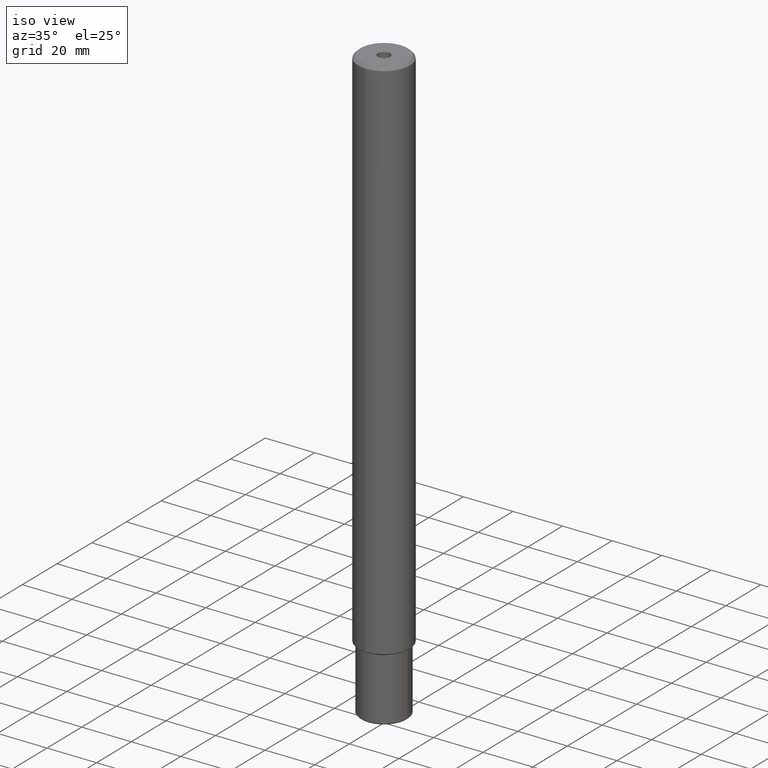
[diagram: clean part render]
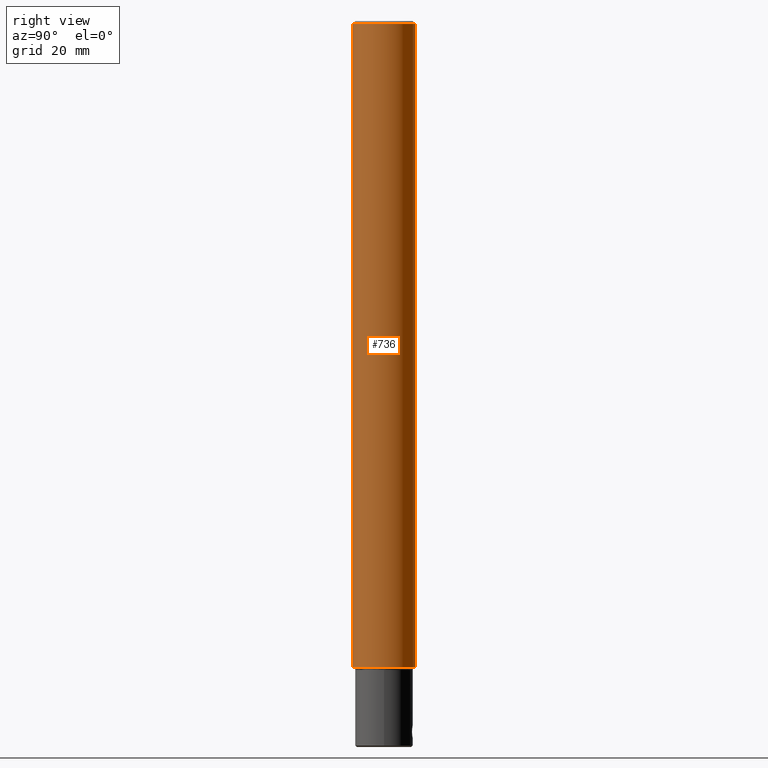
[diagram: tour spotlight — one face highlighted and labeled with its STEP entity id]
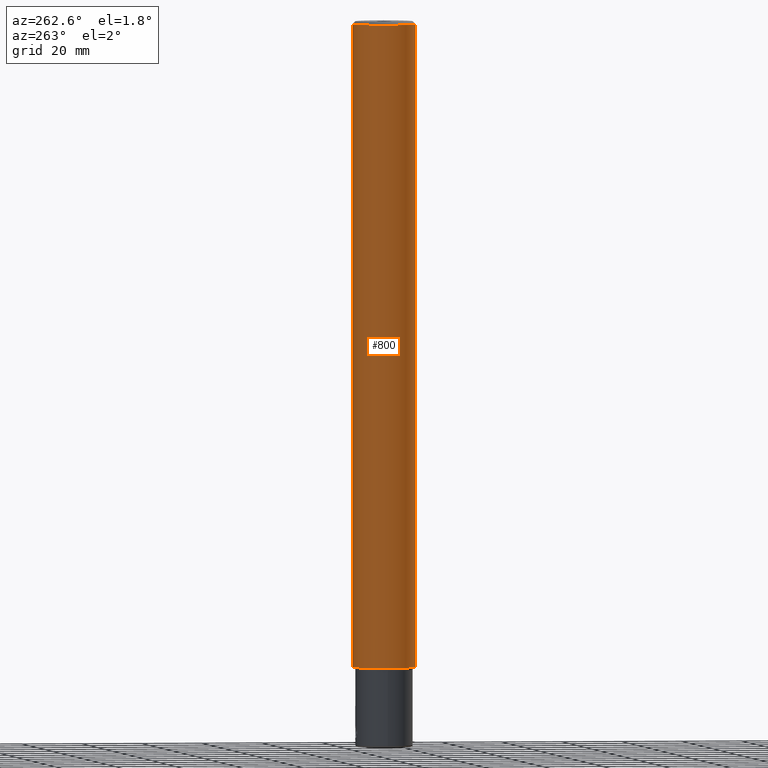
[diagram: tour spotlight — one face highlighted and labeled with its STEP entity id]
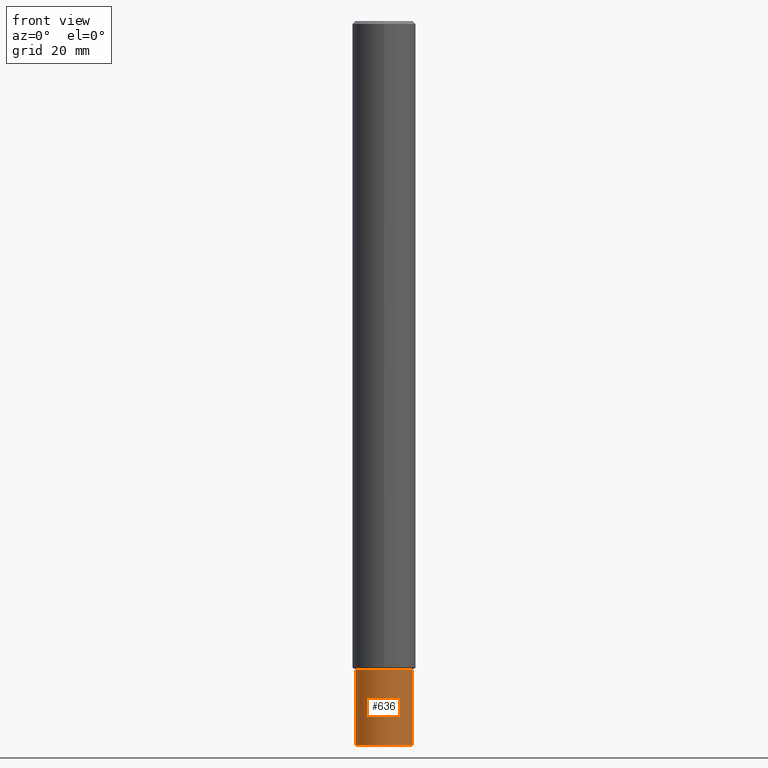
[diagram: tour spotlight — one face highlighted and labeled with its STEP entity id]
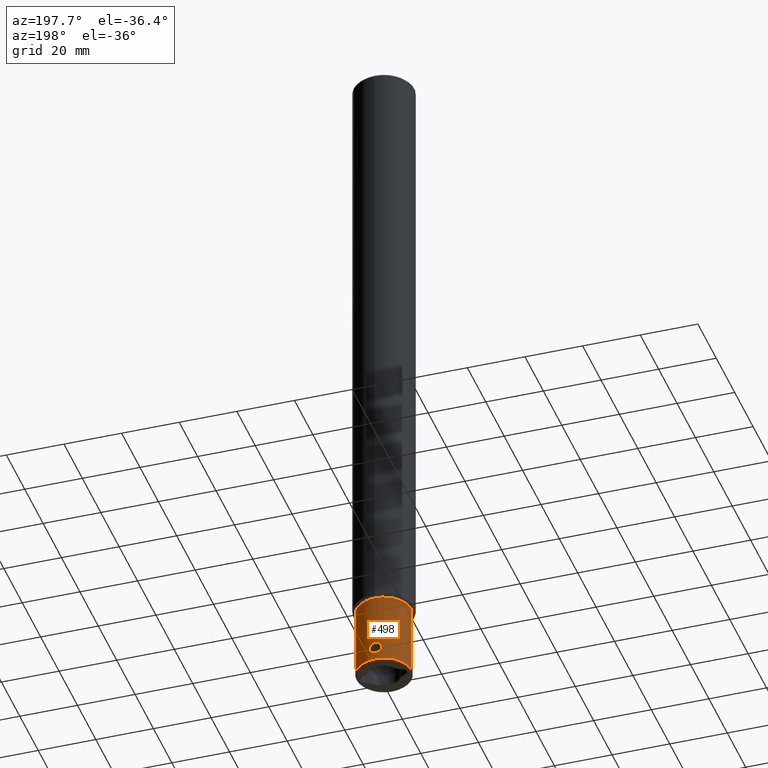
[diagram: tour spotlight — one face highlighted and labeled with its STEP entity id]
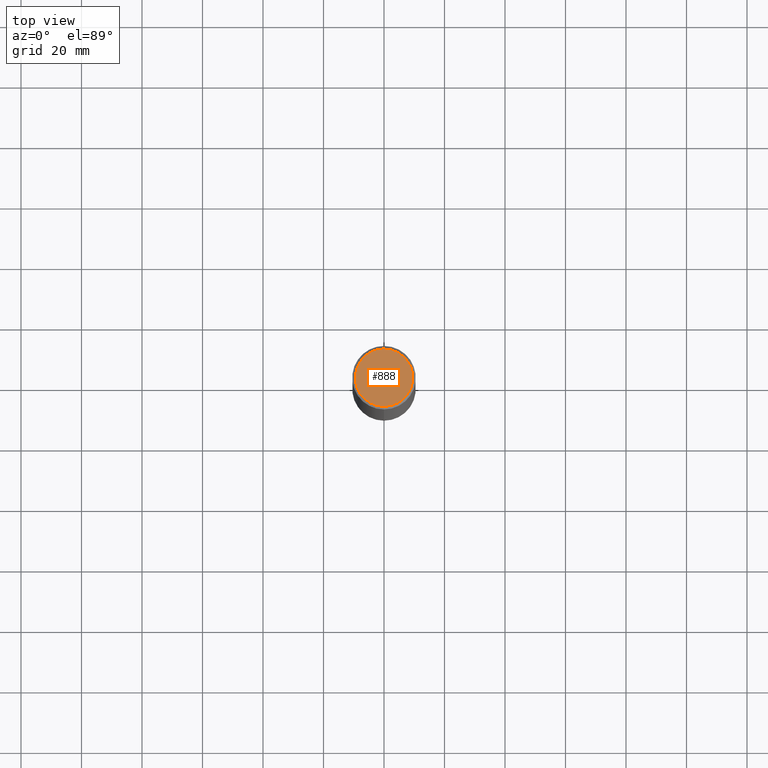
[diagram: tour spotlight — one face highlighted and labeled with its STEP entity id]
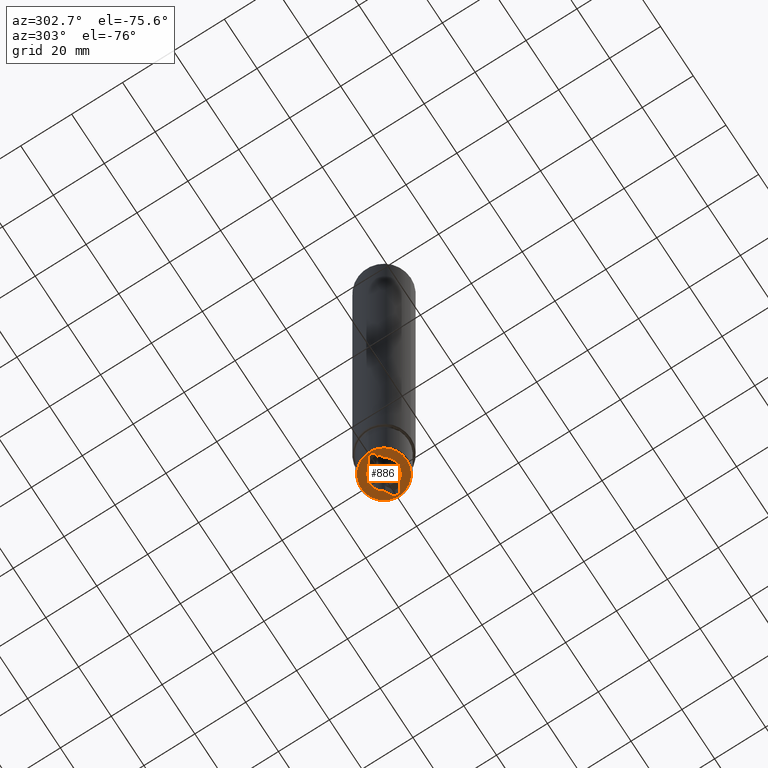
[diagram: tour spotlight — one face highlighted and labeled with its STEP entity id]
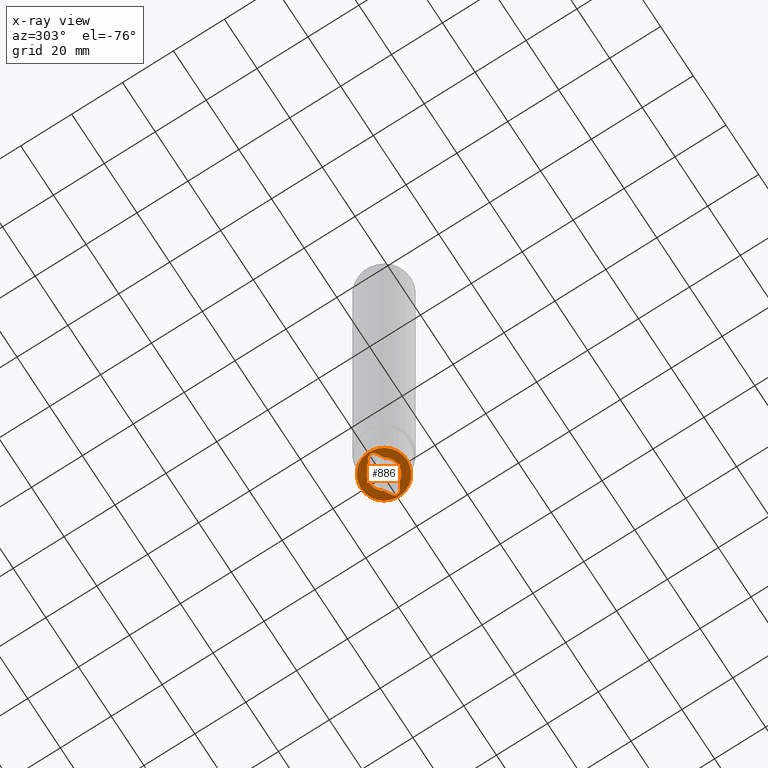
[diagram: x-ray of the same camera — body ghosted, this tour face saturated]
A machine part: a face-by-face anatomy tour. The part has 72 B-rep faces; the first image is the clean iso view, then the 6 largest visible faces are spotlighted one at a time (largest first), each with its STEP entity span.

Face 1 — right view, entity #736. In plain terms, the highlighted cylindrical surface (edge-blend (fillet) strip) has radius 10.5 mm, axis along (0, 0, -1).
Definition (entity closure, byte-faithful):
#434=VERTEX_POINT('NONE',#1158);
#574=VERTEX_POINT('NONE',#1319);
#578=EDGE_CURVE('NONE',#574,#652,#1323,.F.);
#580=EDGE_CURVE('NONE',#434,#1054,#1325,.T.);
#652=VERTEX_POINT('NONE',#1402);
#662=EDGE_CURVE('NONE',#574,#434,#1413,.T.);
#676=EDGE_CURVE('NONE',#652,#1054,#1428,.T.);
#736=ADVANCED_FACE('NONE',(#1491),#1492,.T.);
#1054=VERTEX_POINT('NONE',#1848);
#1158=CARTESIAN_POINT('',(1.93373367662066E-014,10.5,26.3));
#1319=CARTESIAN_POINT('',(-1.60843288344592E-014,10.5,239.0));
#1323=CIRCLE('',#2228,10.5);
#1325=CIRCLE('',#2231,10.5);
#1402=CARTESIAN_POINT('',(-6.22328253596513E-014,-10.5,239.0));
#1413=LINE('',#2448,#2449);
#1428=LINE('',#2468,#2469);
#1491=FACE_OUTER_BOUND('',#2557,.T.);
#1492=CYLINDRICAL_SURFACE('',#2558,10.5);
#1848=CARTESIAN_POINT('',(-2.68111597589856E-014,-10.5,26.3));
#2228=AXIS2_PLACEMENT_3D('',#3627,#3628,#3629);
#2231=AXIS2_PLACEMENT_3D('',#3630,#3631,#3632);
#2448=CARTESIAN_POINT('',(2.37171665983528E-014,10.5,6.69410264469195E-016));
#2449=VECTOR('',#3714,1000.0);
#2468=CARTESIAN_POINT('',(-2.24313299268393E-014,-10.5,-6.69410264469195E-016));
#2469=VECTOR('',#3727,1000.0);
#2557=EDGE_LOOP('',(#3784,#3785,#3786,#3787));
#2558=AXIS2_PLACEMENT_3D('',#3788,#3789,#3790);
#3627=CARTESIAN_POINT('',(-3.9801495432812E-014,-1.52370526864892E-014,239.0));
#3628=DIRECTION('',(-1.66533453693774E-016,-6.37533585208753E-017,1.0));
#3629=DIRECTION('',(2.2587777712717E-015,1.0,6.37533585208757E-017));
#3630=CARTESIAN_POINT('',(-4.37982983214626E-015,-1.67671332909902E-015,26.3));
#3631=DIRECTION('',(1.66533453693774E-016,6.37533585208753E-017,-1.0));
#3632=DIRECTION('',(2.2587777712717E-015,1.0,6.37533585208757E-017));
#3714=DIRECTION('',(1.66533453693774E-016,6.37533585208753E-017,-1.0));
#3727=DIRECTION('',(1.66533453693774E-016,6.37533585208753E-017,-1.0));
#3784=ORIENTED_EDGE('',*,*,#578,.T.);
#3785=ORIENTED_EDGE('',*,*,#676,.T.);
#3786=ORIENTED_EDGE('',*,*,#580,.F.);
#3787=ORIENTED_EDGE('',*,*,#662,.F.);
#3788=CARTESIAN_POINT('',(0.0,0.0,0.0));
#3789=DIRECTION('',(1.66533453693774E-016,6.37533585208753E-017,-1.0));
#3790=DIRECTION('',(2.2587777712717E-015,1.0,6.37533585208757E-017));

Face 2 — auxiliary view, entity #800. In plain terms, the highlighted cylindrical surface (edge-blend (fillet) strip) has radius 10.5 mm, axis along (0, 0, -1).
Definition (entity closure, byte-faithful):
#434=VERTEX_POINT('NONE',#1158);
#574=VERTEX_POINT('NONE',#1319);
#652=VERTEX_POINT('NONE',#1402);
#662=EDGE_CURVE('NONE',#574,#434,#1413,.T.);
#676=EDGE_CURVE('NONE',#652,#1054,#1428,.T.);
#800=ADVANCED_FACE('NONE',(#1563),#1564,.T.);
#1032=EDGE_CURVE('NONE',#652,#574,#1823,.T.);
#1054=VERTEX_POINT('NONE',#1848);
#1072=EDGE_CURVE('NONE',#1054,#434,#1868,.F.);
#1158=CARTESIAN_POINT('',(1.93373367662066E-014,10.5,26.3));
#1319=CARTESIAN_POINT('',(-1.60843288344592E-014,10.5,239.0));
#1402=CARTESIAN_POINT('',(-6.22328253596513E-014,-10.5,239.0));
#1413=LINE('',#2448,#2449);
#1428=LINE('',#2468,#2469);
#1563=FACE_OUTER_BOUND('',#2646,.T.);
#1564=CYLINDRICAL_SURFACE('',#2647,10.5);
#1823=CIRCLE('',#3204,10.5);
#1848=CARTESIAN_POINT('',(-2.68111597589856E-014,-10.5,26.3));
#1868=CIRCLE('',#3344,10.5);
#2448=CARTESIAN_POINT('',(2.37171665983528E-014,10.5,6.69410264469195E-016));
#2449=VECTOR('',#3714,1000.0);
#2468=CARTESIAN_POINT('',(-2.24313299268393E-014,-10.5,-6.69410264469195E-016));
#2469=VECTOR('',#3727,1000.0);
#2646=EDGE_LOOP('',(#3883,#3884,#3885,#3886));
#2647=AXIS2_PLACEMENT_3D('',#3887,#3888,#3889);
#3204=AXIS2_PLACEMENT_3D('',#4217,#4218,#4219);
#3344=AXIS2_PLACEMENT_3D('',#4268,#4269,#4270);
#3714=DIRECTION('',(1.66533453693774E-016,6.37533585208753E-017,-1.0));
#3727=DIRECTION('',(1.66533453693774E-016,6.37533585208753E-017,-1.0));
#3883=ORIENTED_EDGE('',*,*,#676,.F.);
#3884=ORIENTED_EDGE('',*,*,#1032,.T.);
#3885=ORIENTED_EDGE('',*,*,#662,.T.);
#3886=ORIENTED_EDGE('',*,*,#1072,.F.);
#3887=CARTESIAN_POINT('',(0.0,0.0,0.0));
#3888=DIRECTION('',(1.66533453693774E-016,6.37533585208753E-017,-1.0));
#3889=DIRECTION('',(2.2587777712717E-015,1.0,6.37533585208757E-017));
#4217=CARTESIAN_POINT('',(-3.9801495432812E-014,-1.52370526864892E-014,239.0));
#4218=DIRECTION('',(1.66533453693774E-016,6.37533585208753E-017,-1.0));
#4219=DIRECTION('',(2.2587777712717E-015,1.0,6.37533585208757E-017));
#4268=CARTESIAN_POINT('',(-4.37982983214626E-015,-1.67671332909902E-015,26.3));
#4269=DIRECTION('',(-1.66533453693774E-016,-6.37533585208753E-017,1.0));
#4270=DIRECTION('',(2.2587777712717E-015,1.0,6.37533585208757E-017));

Face 3 — front view, entity #636. In plain terms, the highlighted cylindrical surface (edge-blend (fillet) strip) has radius 9.5 mm, axis along (0, -0, -1).
Definition (entity closure, byte-faithful):
#392=EDGE_CURVE('NONE',#708,#410,#1115,.T.);
#410=VERTEX_POINT('NONE',#1134);
#504=EDGE_CURVE('NONE',#872,#410,#1242,.T.);
#560=VERTEX_POINT('NONE',#1303);
#636=ADVANCED_FACE('NONE',(#1384),#1385,.T.);
#708=VERTEX_POINT('NONE',#1462);
#730=EDGE_CURVE('NONE',#778,#746,#1485,.F.);
#746=VERTEX_POINT('NONE',#1503);
#778=VERTEX_POINT('NONE',#1538);
#814=EDGE_CURVE('NONE',#746,#708,#1579,.F.);
#872=VERTEX_POINT('NONE',#1647);
#880=EDGE_CURVE('NONE',#778,#560,#1655,.T.);
#972=EDGE_CURVE('NONE',#560,#872,#1757,.T.);
#1115=LINE('',#1910,#1911);
#1134=CARTESIAN_POINT('',(-9.49999999999999,-1.08031764267214E-015,0.499999999999987));
#1242=CIRCLE('',#2124,9.49999999999999);
#1303=CARTESIAN_POINT('',(9.49999999999999,2.41022713249717E-015,0.49999999999999));
#1384=FACE_OUTER_BOUND('',#2305,.T.);
#1385=CYLINDRICAL_SURFACE('',#2306,9.49999999999999);
#1462=CARTESIAN_POINT('',(-9.5,3.08301869967222E-015,25.5));
#1485=CIRCLE('',#2548,9.49999999999999);
#1503=CARTESIAN_POINT('',(-2.45110007012955E-014,-9.5,25.5));
#1538=CARTESIAN_POINT('',(9.49999999999999,6.57356347484152E-015,25.5));
#1579=CIRCLE('',#2665,9.49999999999999);
#1647=CARTESIAN_POINT('',(-8.30583934591185E-017,-9.49999999999999,0.49999999999999));
#1655=LINE('',#2792,#2793);
#1757=CIRCLE('',#2990,9.49999999999999);
#1910=CARTESIAN_POINT('',(-9.49999999999999,-1.78977480884107E-015,-3.76014803892497));
#1911=VECTOR('',#3381,1000.0);
#2124=AXIS2_PLACEMENT_3D('',#3532,#3533,#3534);
#2305=EDGE_LOOP('',(#3683,#3684,#3685,#3686,#3687,#3688));
#2306=AXIS2_PLACEMENT_3D('',#3689,#3690,#3691);
#2548=AXIS2_PLACEMENT_3D('',#3776,#3777,#3778);
#2665=AXIS2_PLACEMENT_3D('',#3904,#3905,#3906);
#2792=CARTESIAN_POINT('',(9.49999999999999,1.70076996632823E-015,-3.76014803892496));
#2793=VECTOR('',#4016,1000.0);
#2990=AXIS2_PLACEMENT_3D('',#4133,#4134,#4135);
#3381=DIRECTION('',(4.40728183115358E-017,-1.66533453693774E-016,-1.0));
#3532=CARTESIAN_POINT('',(5.00168442699932E-016,8.32667268468846E-017,0.499999999999986));
#3533=DIRECTION('',(2.95816003271834E-017,-1.66533453693774E-016,-1.0));
#3534=DIRECTION('',(-1.0,-1.22482565212528E-016,-2.95816003271834E-017));
#3683=ORIENTED_EDGE('',*,*,#880,.F.);
#3684=ORIENTED_EDGE('',*,*,#730,.T.);
#3685=ORIENTED_EDGE('',*,*,#814,.T.);
#3686=ORIENTED_EDGE('',*,*,#392,.T.);
#3687=ORIENTED_EDGE('',*,*,#504,.F.);
#3688=ORIENTED_EDGE('',*,*,#972,.F.);
#3689=CARTESIAN_POINT('',(6.26190439322044E-016,-6.26190439322045E-016,-3.76014803892497));
#3690=DIRECTION('',(2.95816003271834E-017,-1.66533453693774E-016,-1.0));
#3691=DIRECTION('',(-1.0,-1.22482565212528E-016,-2.95816003271834E-017));
#3776=CARTESIAN_POINT('',(-4.24660306919124E-015,-9.57567358739187E-016,25.5));
#3777=DIRECTION('',(-2.95816003271834E-017,1.66533453693774E-016,1.0));
#3778=DIRECTION('',(-1.0,-1.22482565212528E-016,-2.95816003271834E-017));
#3904=CARTESIAN_POINT('',(-4.24660306919124E-015,-9.57567358739187E-016,25.5));
#3905=DIRECTION('',(-2.95816003271834E-017,1.66533453693774E-016,1.0));
#3906=DIRECTION('',(-1.0,-1.22482565212528E-016,-2.95816003271834E-017));
#4016=DIRECTION('',(4.40728183115358E-017,-1.66533453693774E-016,-1.0));
#4133=CARTESIAN_POINT('',(5.00168442699932E-016,8.32667268468846E-017,0.499999999999986));
#4134=DIRECTION('',(2.95816003271834E-017,-1.66533453693774E-016,-1.0));
#4135=DIRECTION('',(-1.0,-1.22482565212528E-016,-2.95816003271834E-017));

Face 4 — auxiliary view, entity #498. In plain terms, the highlighted cylindrical surface (edge-blend (fillet) strip) has radius 9.5 mm, axis along (0, -0, -1).
Definition (entity closure, byte-faithful):
#392=EDGE_CURVE('NONE',#708,#410,#1115,.T.);
#410=VERTEX_POINT('NONE',#1134);
#498=ADVANCED_FACE('NONE',(#1234,#1235),#1236,.T.);
#546=VERTEX_POINT('NONE',#1288);
#548=EDGE_CURVE('NONE',#708,#566,#1290,.F.);
#560=VERTEX_POINT('NONE',#1303);
#566=VERTEX_POINT('NONE',#1310);
#592=EDGE_CURVE('NONE',#566,#778,#1338,.F.);
#654=EDGE_CURVE('NONE',#658,#546,#1404,.F.);
#658=VERTEX_POINT('NONE',#1409);
#708=VERTEX_POINT('NONE',#1462);
#778=VERTEX_POINT('NONE',#1538);
#828=EDGE_CURVE('NONE',#1004,#560,#1593,.F.);
#880=EDGE_CURVE('NONE',#778,#560,#1655,.T.);
#1004=VERTEX_POINT('NONE',#1794);
#1010=EDGE_CURVE('NONE',#546,#658,#1800,.F.);
#1016=EDGE_CURVE('NONE',#410,#1004,#1806,.F.);
#1115=LINE('',#1910,#1911);
#1134=CARTESIAN_POINT('',(-9.49999999999999,-1.08031764267214E-015,0.499999999999987));
#1234=FACE_OUTER_BOUND('',#2111,.T.);
#1235=FACE_BOUND('',#2112,.T.);
#1236=CYLINDRICAL_SURFACE('',#2113,9.49999999999999);
#1288=CARTESIAN_POINT('',(-2.61146654234438E-015,9.49999999999999,7.15));
#1290=CIRCLE('',#2187,9.49999999999999);
#1303=CARTESIAN_POINT('',(9.49999999999999,2.41022713249717E-015,0.49999999999999));
#1310=CARTESIAN_POINT('',(1.72117857578899E-014,9.5,25.5));
#1338=CIRCLE('',#2247,9.49999999999999);
#1404=B_SPLINE_CURVE_WITH_KNOTS('',3,(#2386,#2387,#2388,#2389,#2390,#2391,#2392,#2393,#2394,#2395,#2396,#2397,#2398,#2399,#2400,#2401,#2402,#2403,#2404,#2405,#2406,#2407,#2408,#2409,#2410,#2411,#2412,#2413,#2414,#2415,#2416,#2417,#2418,#2419,#2420,#2421,#2422,#2423,#2424,#2425,#2426,#2427,#2428,#2429,#2430,#2431,#2432,#2433,#2434,#2435,#2436),.UNSPECIFIED.,.F.,.F.,(4,2,2,2,2,2,2,2,2,2,2,2,3,2,2,2,2,2,2,2,2,2,2,2,4),(-4.76316064169787,-4.36624174777563,-3.9693228538534,-3.57240395993116,-3.17548506600892,-2.77856617208668,-2.38164727816444,-1.9847283842422,-1.58780949031996,-1.19085711773997,-0.793904745159981,-0.396952372579991,0.0,0.39695237257999,0.79390474515998,1.19085711773997,1.58780949031996,1.9847283842422,2.38164727816444,2.77856617208668,3.17548506600891,3.57240395993115,3.96932285385339,4.36624174777563,4.76316064169787),.UNSPECIFIED.);
#1409=CARTESIAN_POINT('',(-1.64327351938954E-015,9.49999999999999,2.95));
#1462=CARTESIAN_POINT('',(-9.5,3.08301869967222E-015,25.5));
#1538=CARTESIAN_POINT('',(9.49999999999999,6.57356347484152E-015,25.5));
#1593=CIRCLE('',#2689,9.49999999999999);
#1655=LINE('',#2792,#2793);
#1794=CARTESIAN_POINT('',(-1.24685109636591E-015,9.49999999999999,0.499999999999987));
#1800=B_SPLINE_CURVE_WITH_KNOTS('',3,(#3108,#3109,#3110,#3111,#3112,#3113,#3114,#3115,#3116,#3117,#3118,#3119,#3120,#3121,#3122,#3123,#3124,#3125,#3126,#3127,#3128,#3129,#3130,#3131,#3132,#3133,#3134,#3135,#3136,#3137,#3138,#3139,#3140,#3141,#3142,#3143,#3144,#3145,#3146,#3147,#3148,#3149,#3150,#3151,#3152,#3153,#3154,#3155,#3156,#3157),.UNSPECIFIED.,.F.,.F.,(4,2,2,2,2,2,2,2,2,2,2,2,2,2,2,2,2,2,2,2,2,2,2,2,4),(1.58780949031996,1.9847283842422,2.38164727816444,2.77856617208668,3.17548506600891,3.57240395993115,3.96932285385339,4.36624174777563,4.76316064169787,5.16011301427786,5.55706538685785,5.95401775943784,6.35097013201783,6.74792250459782,7.14487487717781,7.5418272497578,7.93877962233779,8.33569851626003,8.73261741018227,9.12953630410451,9.52645519802675,9.92337409194898,10.3202929858712,10.7172118797935,11.1141307737157),.UNSPECIFIED.);
#1806=CIRCLE('',#3167,9.49999999999999);
#1910=CARTESIAN_POINT('',(-9.49999999999999,-1.78977480884107E-015,-3.76014803892497));
#1911=VECTOR('',#3381,1000.0);
#2111=EDGE_LOOP('',(#3519,#3520,#3521,#3522,#3523,#3524));
#2112=EDGE_LOOP('',(#3525,#3526));
#2113=AXIS2_PLACEMENT_3D('',#3527,#3528,#3529);
#2187=AXIS2_PLACEMENT_3D('',#3594,#3595,#3596);
#2247=AXIS2_PLACEMENT_3D('',#3646,#3647,#3648);
#2386=CARTESIAN_POINT('',(-1.48492424049175,9.38322972115678,6.53492424049175));
#2387=CARTESIAN_POINT('',(-1.39194986187023,9.39794319537221,6.62789861911327));
#2388=CARTESIAN_POINT('',(-1.28688934092168,9.41314073160092,6.71521717711817));
#2389=CARTESIAN_POINT('',(-1.05797891274083,9.44160914403957,6.86926167530233));
#2390=CARTESIAN_POINT('',(-0.934132669070055,9.45485229980435,6.93599818100749));
#2391=CARTESIAN_POINT('',(-0.675559563917772,9.47683782324219,7.04329182040496));
#2392=CARTESIAN_POINT('',(-0.540618581817242,9.48557906319787,7.08393422932773));
#2393=CARTESIAN_POINT('',(-0.268993374094961,9.49716384926985,7.13729477193439));
#2394=CARTESIAN_POINT('',(-0.132306297974082,9.49999999999999,7.15));
#2395=CARTESIAN_POINT('',(0.132306297974077,9.49999999999999,7.15));
#2396=CARTESIAN_POINT('',(0.268993374094956,9.49716384926985,7.13729477193439));
#2397=CARTESIAN_POINT('',(0.540618581817237,9.48557906319787,7.08393422932773));
#2398=CARTESIAN_POINT('',(0.675559563917767,9.47683782324219,7.04329182040496));
#2399=CARTESIAN_POINT('',(0.934132669070051,9.45485229980435,6.93599818100749));
#2400=CARTESIAN_POINT('',(1.05797891274083,9.44160914403957,6.86926167530233));
#2401=CARTESIAN_POINT('',(1.28688934092168,9.41314073160092,6.71521717711817));
#2402=CARTESIAN_POINT('',(1.39194986187022,9.39794319537221,6.62789861911327));
#2403=CARTESIAN_POINT('',(1.57790646116224,9.36851500591357,6.44194201982126));
#2404=CARTESIAN_POINT('',(1.66522589677435,9.35324335897208,6.33687785141604));
#2405=CARTESIAN_POINT('',(1.81926688429354,9.32450570398209,6.10796970411624));
#2406=CARTESIAN_POINT('',(1.88599937129834,9.31106917764845,5.98412938375651));
#2407=CARTESIAN_POINT('',(1.99328855236909,9.28869225107125,5.72556785649964));
#2408=CARTESIAN_POINT('',(2.03393053016164,9.27975611893227,5.59063235325535));
#2409=CARTESIAN_POINT('',(2.08729276693529,9.26789921901988,5.31900863845981));
#2410=CARTESIAN_POINT('',(2.1,9.26498785752037,5.18231745752666));
#2411=CARTESIAN_POINT('',(2.1,9.26498785752037,5.05));
#2412=CARTESIAN_POINT('',(2.1,9.26498785752037,4.91768254247333));
#2413=CARTESIAN_POINT('',(2.08729276693529,9.26789921901988,4.78099136154018));
#2414=CARTESIAN_POINT('',(2.03393053016164,9.27975611893228,4.50936764674464));
#2415=CARTESIAN_POINT('',(1.99328855236909,9.28869225107124,4.37443214350036));
#2416=CARTESIAN_POINT('',(1.88599937129834,9.31106917764845,4.11587061624349));
#2417=CARTESIAN_POINT('',(1.81926688429354,9.32450570398209,3.99203029588376));
#2418=CARTESIAN_POINT('',(1.66522589677435,9.35324335897208,3.76312214858395));
#2419=CARTESIAN_POINT('',(1.57790646116224,9.36851500591357,3.65805798017874));
#2420=CARTESIAN_POINT('',(1.39194986187022,9.39794319537221,3.47210138088672));
#2421=CARTESIAN_POINT('',(1.28688934092168,9.41314073160092,3.38478282288182));
#2422=CARTESIAN_POINT('',(1.05797891274083,9.44160914403957,3.23073832469766));
#2423=CARTESIAN_POINT('',(0.934132669070052,9.45485229980435,3.1640018189925));
#2424=CARTESIAN_POINT('',(0.675559563917768,9.47683782324219,3.05670817959503));
#2425=CARTESIAN_POINT('',(0.540618581817238,9.48557906319787,3.01606577067226));
#2426=CARTESIAN_POINT('',(0.268993374094957,9.49716384926985,2.96270522806561));
#2427=CARTESIAN_POINT('',(0.132306297974078,9.49999999999999,2.95));
#2428=CARTESIAN_POINT('',(-0.132306297974082,9.49999999999999,2.95));
#2429=CARTESIAN_POINT('',(-0.26899337409496,9.49716384926985,2.96270522806561));
#2430=CARTESIAN_POINT('',(-0.540618581817241,9.48557906319787,3.01606577067226));
#2431=CARTESIAN_POINT('',(-0.675559563917771,9.4768378232422,3.05670817959503));
#2432=CARTESIAN_POINT('',(-0.934132669070054,9.45485229980435,3.1640018189925));
#2433=CARTESIAN_POINT('',(-1.05797891274083,9.44160914403957,3.23073832469766));
#2434=CARTESIAN_POINT('',(-1.28688934092168,9.41314073160092,3.38478282288182));
#2435=CARTESIAN_POINT('',(-1.39194986187023,9.39794319537221,3.47210138088672));
#2436=CARTESIAN_POINT('',(-1.48492424049175,9.38322972115677,3.56507575950825));
#2689=AXIS2_PLACEMENT_3D('',#3915,#3916,#3917);
#2792=CARTESIAN_POINT('',(9.49999999999999,1.70076996632823E-015,-3.76014803892496));
#2793=VECTOR('',#4016,1000.0);
#3108=CARTESIAN_POINT('',(1.48492424049175,9.38322972115678,3.56507575950825));
#3109=CARTESIAN_POINT('',(1.39194986187022,9.39794319537221,3.47210138088672));
#3110=CARTESIAN_POINT('',(1.28688934092168,9.41314073160092,3.38478282288182));
#3111=CARTESIAN_POINT('',(1.05797891274083,9.44160914403957,3.23073832469766));
#3112=CARTESIAN_POINT('',(0.934132669070052,9.45485229980435,3.1640018189925));
#3113=CARTESIAN_POINT('',(0.675559563917768,9.47683782324219,3.05670817959503));
#3114=CARTESIAN_POINT('',(0.540618581817238,9.48557906319787,3.01606577067226));
#3115=CARTESIAN_POINT('',(0.268993374094957,9.49716384926985,2.96270522806561));
#3116=CARTESIAN_POINT('',(0.132306297974078,9.49999999999999,2.95));
#3117=CARTESIAN_POINT('',(-0.132306297974082,9.49999999999999,2.95));
#3118=CARTESIAN_POINT('',(-0.26899337409496,9.49716384926985,2.96270522806561));
#3119=CARTESIAN_POINT('',(-0.540618581817241,9.48557906319787,3.01606577067226));
#3120=CARTESIAN_POINT('',(-0.675559563917771,9.4768378232422,3.05670817959503));
#3121=CARTESIAN_POINT('',(-0.934132669070054,9.45485229980435,3.1640018189925));
#3122=CARTESIAN_POINT('',(-1.05797891274083,9.44160914403957,3.23073832469766));
#3123=CARTESIAN_POINT('',(-1.28688934092168,9.41314073160092,3.38478282288182));
#3124=CARTESIAN_POINT('',(-1.39194986187023,9.39794319537221,3.47210138088672));
#3125=CARTESIAN_POINT('',(-1.57790646116224,9.36851500591357,3.65805798017874));
#3126=CARTESIAN_POINT('',(-1.66522589677436,9.35324335897208,3.76312214858395));
#3127=CARTESIAN_POINT('',(-1.81926688429354,9.32450570398209,3.99203029588376));
#3128=CARTESIAN_POINT('',(-1.88599937129835,9.31106917764844,4.11587061624349));
#3129=CARTESIAN_POINT('',(-1.9932885523691,9.28869225107124,4.37443214350036));
#3130=CARTESIAN_POINT('',(-2.03393053016164,9.27975611893227,4.50936764674464));
#3131=CARTESIAN_POINT('',(-2.08729276693529,9.26789921901987,4.78099136154018));
#3132=CARTESIAN_POINT('',(-2.1,9.26498785752037,4.91768254247333));
#3133=CARTESIAN_POINT('',(-2.1,9.26498785752037,5.18231745752666));
#3134=CARTESIAN_POINT('',(-2.08729276693529,9.26789921901988,5.31900863845981));
#3135=CARTESIAN_POINT('',(-2.03393053016164,9.27975611893227,5.59063235325535));
#3136=CARTESIAN_POINT('',(-1.9932885523691,9.28869225107124,5.72556785649964));
#3137=CARTESIAN_POINT('',(-1.88599937129835,9.31106917764845,5.98412938375651));
#3138=CARTESIAN_POINT('',(-1.81926688429354,9.32450570398209,6.10796970411624));
#3139=CARTESIAN_POINT('',(-1.66522589677436,9.35324335897208,6.33687785141604));
#3140=CARTESIAN_POINT('',(-1.57790646116224,9.36851500591357,6.44194201982126));
#3141=CARTESIAN_POINT('',(-1.39194986187023,9.39794319537221,6.62789861911327));
#3142=CARTESIAN_POINT('',(-1.28688934092168,9.41314073160092,6.71521717711817));
#3143=CARTESIAN_POINT('',(-1.05797891274083,9.44160914403957,6.86926167530233));
#3144=CARTESIAN_POINT('',(-0.934132669070055,9.45485229980435,6.93599818100749));
#3145=CARTESIAN_POINT('',(-0.675559563917772,9.47683782324219,7.04329182040496));
#3146=CARTESIAN_POINT('',(-0.540618581817242,9.48557906319787,7.08393422932773));
#3147=CARTESIAN_POINT('',(-0.268993374094961,9.49716384926985,7.13729477193439));
#3148=CARTESIAN_POINT('',(-0.132306297974082,9.49999999999999,7.15));
#3149=CARTESIAN_POINT('',(0.132306297974077,9.49999999999999,7.15));
#3150=CARTESIAN_POINT('',(0.268993374094956,9.49716384926985,7.13729477193439));
#3151=CARTESIAN_POINT('',(0.540618581817237,9.48557906319787,7.08393422932773));
#3152=CARTESIAN_POINT('',(0.675559563917767,9.47683782324219,7.04329182040496));
#3153=CARTESIAN_POINT('',(0.934132669070051,9.45485229980435,6.93599818100749));
#3154=CARTESIAN_POINT('',(1.05797891274083,9.44160914403957,6.86926167530233));
#3155=CARTESIAN_POINT('',(1.28688934092168,9.41314073160092,6.71521717711817));
#3156=CARTESIAN_POINT('',(1.39194986187022,9.39794319537221,6.62789861911327));
#3157=CARTESIAN_POINT('',(1.48492424049175,9.38322972115678,6.53492424049175));
#3167=AXIS2_PLACEMENT_3D('',#4200,#4201,#4202);
#3381=DIRECTION('',(4.40728183115358E-017,-1.66533453693774E-016,-1.0));
#3519=ORIENTED_EDGE('',*,*,#548,.T.);
#3520=ORIENTED_EDGE('',*,*,#592,.T.);
#3521=ORIENTED_EDGE('',*,*,#880,.T.);
#3522=ORIENTED_EDGE('',*,*,#828,.F.);
#3523=ORIENTED_EDGE('',*,*,#1016,.F.);
#3524=ORIENTED_EDGE('',*,*,#392,.F.);
#3525=ORIENTED_EDGE('',*,*,#654,.T.);
#3526=ORIENTED_EDGE('',*,*,#1010,.T.);
#3527=CARTESIAN_POINT('',(6.26190439322044E-016,-6.26190439322045E-016,-3.76014803892497));
#3528=DIRECTION('',(2.95816003271834E-017,-1.66533453693774E-016,-1.0));
#3529=DIRECTION('',(-1.0,-1.22482565212528E-016,-2.95816003271834E-017));
#3594=CARTESIAN_POINT('',(-4.24660306919124E-015,-9.57567358739187E-016,25.5));
#3595=DIRECTION('',(-2.95816003271834E-017,1.66533453693774E-016,1.0));
#3596=DIRECTION('',(-1.0,-1.22482565212528E-016,-2.95816003271834E-017));
#3646=CARTESIAN_POINT('',(-4.24660306919124E-015,-9.57567358739187E-016,25.5));
#3647=DIRECTION('',(-2.95816003271834E-017,1.66533453693774E-016,1.0));
#3648=DIRECTION('',(-1.0,-1.22482565212528E-016,-2.95816003271834E-017));
#3915=CARTESIAN_POINT('',(5.00168442699932E-016,8.32667268468846E-017,0.499999999999986));
#3916=DIRECTION('',(-2.95816003271834E-017,1.66533453693774E-016,1.0));
#3917=DIRECTION('',(-1.0,-1.22482565212528E-016,-2.95816003271834E-017));
#4016=DIRECTION('',(4.40728183115358E-017,-1.66533453693774E-016,-1.0));
#4200=CARTESIAN_POINT('',(5.00168442699932E-016,8.32667268468846E-017,0.499999999999986));
#4201=DIRECTION('',(-2.95816003271834E-017,1.66533453693774E-016,1.0));
#4202=DIRECTION('',(-1.0,-1.22482565212528E-016,-2.95816003271834E-017));

Face 5 — top view, entity #888. In plain terms, the highlighted planar face has unit normal (-0, -0, 1).
Definition (entity closure, byte-faithful):
#396=VERTEX_POINT('NONE',#1120);
#540=EDGE_CURVE('NONE',#614,#558,#1282,.T.);
#558=VERTEX_POINT('NONE',#1301);
#614=VERTEX_POINT('NONE',#1362);
#750=VERTEX_POINT('NONE',#1507);
#888=ADVANCED_FACE('NONE',(#1667,#1668),#1669,.T.);
#896=EDGE_CURVE('NONE',#750,#396,#1677,.T.);
#1012=EDGE_CURVE('NONE',#558,#614,#1802,.F.);
#1034=EDGE_CURVE('NONE',#396,#750,#1825,.F.);
#1120=CARTESIAN_POINT('',(-3.40149328698709E-014,2.49999999999998,240.0));
#1282=CIRCLE('',#2177,9.50000000000009);
#1301=CARTESIAN_POINT('',(-6.02018113597646E-014,-9.50000000000008,240.0));
#1362=CARTESIAN_POINT('',(-1.85096400594245E-014,9.50000000000005,240.0));
#1507=CARTESIAN_POINT('',(-4.5614973314685E-014,-2.50000000000002,240.0));
#1667=FACE_OUTER_BOUND('',#2805,.T.);
#1668=FACE_BOUND('',#2806,.T.);
#1669=PLANE('',#2807);
#1677=CIRCLE('',#2822,2.5);
#1802=CIRCLE('',#3160,9.50000000000009);
#1825=CIRCLE('',#3207,2.5);
#2177=AXIS2_PLACEMENT_3D('',#3588,#3589,#3590);
#2805=EDGE_LOOP('',(#4048,#4049));
#2806=EDGE_LOOP('',(#4050,#4051));
#2807=AXIS2_PLACEMENT_3D('',#4052,#4053,#4054);
#2822=AXIS2_PLACEMENT_3D('',#4058,#4059,#4060);
#3160=AXIS2_PLACEMENT_3D('',#4196,#4197,#4198);
#3207=AXIS2_PLACEMENT_3D('',#4220,#4221,#4222);
#3588=CARTESIAN_POINT('',(-3.99680288865058E-014,-1.50705192327954E-014,240.0));
#3589=DIRECTION('',(-1.66533453693774E-016,-6.37533585208753E-017,1.0));
#3590=DIRECTION('',(2.2587777712717E-015,1.0,6.37533585208757E-017));
#4048=ORIENTED_EDGE('',*,*,#540,.T.);
#4049=ORIENTED_EDGE('',*,*,#1012,.T.);
#4050=ORIENTED_EDGE('',*,*,#896,.F.);
#4051=ORIENTED_EDGE('',*,*,#1034,.F.);
#4052=CARTESIAN_POINT('',(-1.62508622881529E-014,10.5,240.0));
#4053=DIRECTION('',(-1.66533453693774E-016,-6.37533585208753E-017,1.0));
#4054=DIRECTION('',(2.2587777712717E-015,1.0,6.37533585208757E-017));
#4058=CARTESIAN_POINT('',(-3.99680288865058E-014,-1.53008060450101E-014,240.0));
#4059=DIRECTION('',(-1.66533453693774E-016,-6.37533585208753E-017,1.0));
#4060=DIRECTION('',(-2.2587777712717E-015,-1.0,-6.37533585208757E-017));
#4196=CARTESIAN_POINT('',(-3.99680288865058E-014,-1.50705192327954E-014,240.0));
#4197=DIRECTION('',(1.66533453693774E-016,6.37533585208753E-017,-1.0));
#4198=DIRECTION('',(2.2587777712717E-015,1.0,6.37533585208757E-017));
#4220=CARTESIAN_POINT('',(-3.99680288865058E-014,-1.53008060450101E-014,240.0));
#4221=DIRECTION('',(1.66533453693774E-016,6.37533585208753E-017,-1.0));
#4222=DIRECTION('',(-2.2587777712717E-015,-1.0,-6.37533585208757E-017));

Face 6 — auxiliary view, entity #886. An x-ray twin of the same camera follows (body ghosted, this face saturated) — the face is partly hidden behind the body. In plain terms, the highlighted planar face has unit normal (-0, 0, 1).
Definition (entity closure, byte-faithful):
#510=VERTEX_POINT('NONE',#1248);
#536=EDGE_CURVE('NONE',#582,#864,#1278,.T.);
#582=VERTEX_POINT('NONE',#1327);
#586=EDGE_CURVE('NONE',#510,#806,#1331,.T.);
#758=EDGE_CURVE('NONE',#878,#582,#1515,.T.);
#760=VERTEX_POINT('NONE',#1517);
#766=EDGE_CURVE('NONE',#806,#1006,#1524,.T.);
#806=VERTEX_POINT('NONE',#1570);
#826=VERTEX_POINT('NONE',#1591);
#840=EDGE_CURVE('NONE',#1006,#826,#1608,.T.);
#862=EDGE_CURVE('NONE',#760,#932,#1635,.F.);
#864=VERTEX_POINT('NONE',#1637);
#878=VERTEX_POINT('NONE',#1653);
#886=ADVANCED_FACE('NONE',(#1663,#1664),#1665,.F.);
#912=EDGE_CURVE('NONE',#864,#998,#1693,.T.);
#932=VERTEX_POINT('NONE',#1714);
#998=VERTEX_POINT('NONE',#1787);
#1006=VERTEX_POINT('NONE',#1796);
#1008=EDGE_CURVE('NONE',#932,#760,#1798,.F.);
#1022=EDGE_CURVE('NONE',#998,#510,#1812,.T.);
#1050=EDGE_CURVE('NONE',#826,#878,#1843,.T.);
#1248=CARTESIAN_POINT('',(-7.30000000000001,-1.64544826719044,-1.16573417585641E-015));
#1278=LINE('',#2170,#2171);
#1327=CARTESIAN_POINT('',(7.30000000000001,-1.64544826719044,1.39835880921515E-015));
#1331=CIRCLE('',#2238,1.9);
#1515=CIRCLE('',#2586,1.90000000000001);
#1517=CARTESIAN_POINT('',(-1.69765817103381E-015,9.0,-2.79984369022657E-015));
#1524=LINE('',#2597,#2598);
#1570=CARTESIAN_POINT('',(-7.30000000000001,1.64544826719044,-1.88737914186277E-015));
#1591=CARTESIAN_POINT('',(4.8641900343202,3.05176380657043,-1.19904086659517E-014));
#1608=CIRCLE('',#2707,5.74226497308104);
#1635=CIRCLE('',#2768,9.0);
#1637=CARTESIAN_POINT('',(4.86419003432022,-3.05176380657043,-5.77266354579687E-016));
#1653=CARTESIAN_POINT('',(7.30000000000001,1.64544826719044,-2.33146835171283E-015));
#1663=FACE_OUTER_BOUND('',#2801,.T.);
#1664=FACE_BOUND('',#2802,.T.);
#1665=PLANE('',#2803);
#1693=CIRCLE('',#2888,5.74226497308104);
#1714=CARTESIAN_POINT('',(5.64897293748105E-016,-9.0,1.9775847626136E-016));
#1787=CARTESIAN_POINT('',(-4.86419003432022,-3.05176380657043,-8.88178419700125E-016));
#1796=CARTESIAN_POINT('',(-4.86419003432022,3.05176380657043,-3.99680288865056E-015));
#1798=CIRCLE('',#3105,9.0);
#1812=LINE('',#3184,#3185);
#1843=LINE('',#3260,#3261);
#2170=CARTESIAN_POINT('',(0.793749999999986,-5.40183345610544,-8.88178419700125E-016));
#2171=VECTOR('',#3584,1.0);
#2238=AXIS2_PLACEMENT_3D('',#3633,#3634,#3635);
#2586=AXIS2_PLACEMENT_3D('',#3806,#3807,#3808);
#2597=CARTESIAN_POINT('',(-9.04375000000001,0.638693735291033,-1.83186799063151E-015));
#2598=VECTOR('',#3820,1.0);
#2707=AXIS2_PLACEMENT_3D('',#3942,#3943,#3944);
#2768=AXIS2_PLACEMENT_3D('',#3989,#3990,#3991);
#2801=EDGE_LOOP('',(#4034,#4035));
#2802=EDGE_LOOP('',(#4036,#4037,#4038,#4039,#4040,#4041,#4042,#4043));
#2803=AXIS2_PLACEMENT_3D('',#4044,#4045,#4046);
#2888=AXIS2_PLACEMENT_3D('',#4073,#4074,#4075);
#3105=AXIS2_PLACEMENT_3D('',#4193,#4194,#4195);
#3184=CARTESIAN_POINT('',(-6.64663568297002,-2.02266833150659,-1.2490009027033E-015));
#3185=VECTOR('',#4203,1.0);
#3260=CARTESIAN_POINT('',(-1.60336431703,6.78580805232099,-3.10862446895044E-015));
#3261=VECTOR('',#4241,1.0);
#3584=DIRECTION('',(-0.86602540378444,-0.499999999999998,4.50985465727205E-017));
#3633=CARTESIAN_POINT('',(-6.35000000000001,7.76691602165047E-016,-1.02695629777827E-015));
#3634=DIRECTION('',(4.40728183115358E-017,-1.66533453693774E-016,-1.0));
#3635=DIRECTION('',(-9.037342630069E-017,-1.0,1.66533453693774E-016));
#3806=CARTESIAN_POINT('',(6.35000000000001,7.76970111009737E-016,1.08246744900953E-015));
#3807=DIRECTION('',(4.40728183115358E-017,-1.66533453693774E-016,-1.0));
#3808=DIRECTION('',(-9.03734263006912E-017,-1.0,1.66533453693774E-016));
#3820=DIRECTION('',(0.866025403784439,0.499999999999999,-4.50985465727207E-017));
#3942=CARTESIAN_POINT('',(4.60374596028002E-016,-1.60237371373018E-031,-1.30451205393456E-015));
#3943=DIRECTION('',(4.40728183115358E-017,-1.66533453693774E-016,-1.0));
#3944=DIRECTION('',(-1.0,-1.22482565212528E-016,-4.40728183115358E-017));
#3989=CARTESIAN_POINT('',(0.0,0.0,0.0));
#3990=DIRECTION('',(4.40728183115358E-017,-1.66533453693774E-016,-1.0));
#3991=DIRECTION('',(-1.22482565212528E-016,1.0,-1.66533453693774E-016));
#4034=ORIENTED_EDGE('',*,*,#862,.F.);
#4035=ORIENTED_EDGE('',*,*,#1008,.F.);
#4036=ORIENTED_EDGE('',*,*,#1050,.F.);
#4037=ORIENTED_EDGE('',*,*,#840,.F.);
#4038=ORIENTED_EDGE('',*,*,#766,.F.);
#4039=ORIENTED_EDGE('',*,*,#586,.F.);
#4040=ORIENTED_EDGE('',*,*,#1022,.F.);
#4041=ORIENTED_EDGE('',*,*,#912,.F.);
#4042=ORIENTED_EDGE('',*,*,#536,.F.);
#4043=ORIENTED_EDGE('',*,*,#758,.F.);
#4044=CARTESIAN_POINT('',(-11.0,-1.34730821733781E-015,-1.8088557995205E-015));
#4045=DIRECTION('',(-4.40728183115358E-017,1.66533453693774E-016,1.0));
#4046=DIRECTION('',(2.2587777712717E-015,1.0,-1.66533453693774E-016));
#4073=CARTESIAN_POINT('',(4.60374596028002E-016,-1.60237371373018E-031,-1.30451205393456E-015));
#4074=DIRECTION('',(4.40728183115358E-017,-1.66533453693774E-016,-1.0));
#4075=DIRECTION('',(-1.0,-1.22482565212528E-016,-4.40728183115358E-017));
#4193=CARTESIAN_POINT('',(0.0,0.0,0.0));
#4194=DIRECTION('',(4.40728183115358E-017,-1.66533453693774E-016,-1.0));
#4195=DIRECTION('',(-1.22482565212528E-016,1.0,-1.66533453693774E-016));
#4203=DIRECTION('',(-0.86602540378444,0.499999999999998,-1.21434907121053E-016));
#4241=DIRECTION('',(0.86602540378444,-0.499999999999998,1.21434907121053E-016));